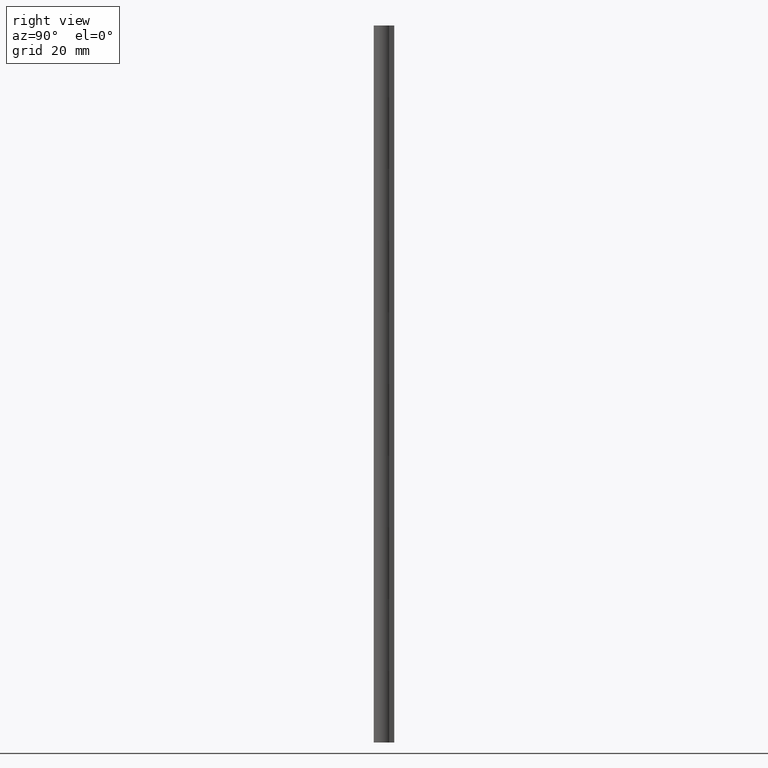
[diagram: clean part render]
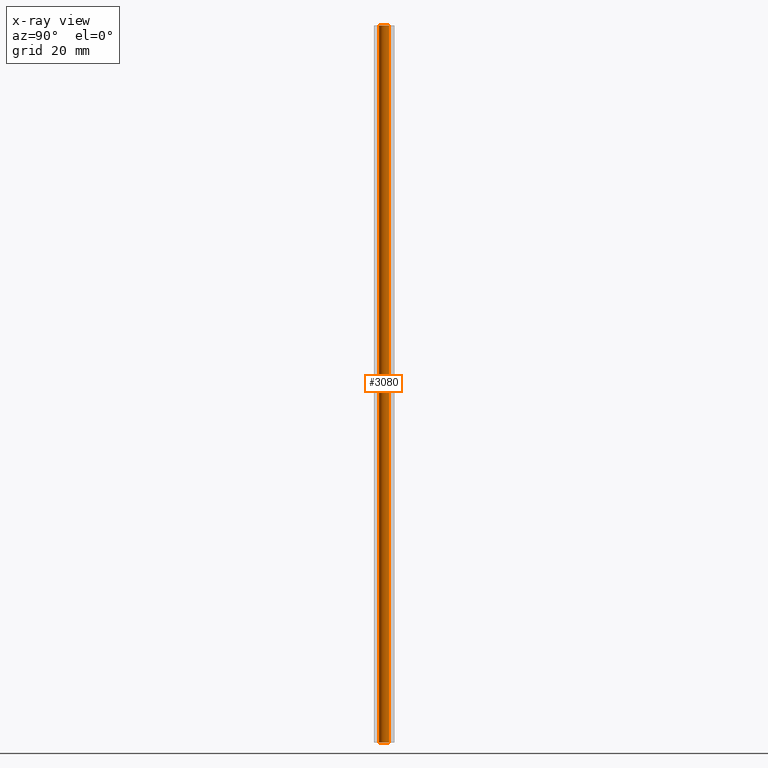
[diagram: x-ray — body ghosted, one internal face saturated and labeled with its STEP entity id]
A machine part, right view, then the same camera in x-ray: the body is ghosted and one INTERNAL B-rep face — a face not visible from any outside direction — is saturated and labeled: STEP entity #3080.
In plain terms, the highlighted face is a freeform B-spline surface patch.
Its self-contained STEP definition (entity closure, byte-faithful):
#2978=CARTESIAN_POINT('',(0.118034234656758,-0.993009526363666,143.500000000000030));
#2979=CARTESIAN_POINT('',(0.089614728637978,-0.996387615448606,143.500000000000030));
#2980=CARTESIAN_POINT('',(0.061048539534857,-0.998134798421867,143.500000000000000));
#2981=CARTESIAN_POINT('',(-0.937086258887010,-1.059183337956724,143.500000000000030));
#2982=CARTESIAN_POINT('',(-0.998134798421867,-0.061048539534857,143.500000000000000));
#2983=CARTESIAN_POINT('',(-1.059183337956724,0.937086258887010,143.500000000000030));
#2984=CARTESIAN_POINT('',(-0.061048539534857,0.998134798421867,143.500000000000000));
#2985=CARTESIAN_POINT('',(0.118034234656758,-0.993009526363666,-3.587500000000006));
#2986=CARTESIAN_POINT('',(0.089614728637978,-0.996387615448606,-3.587500000000005));
#2987=CARTESIAN_POINT('',(0.061048539534857,-0.998134798421867,-3.587500000000006));
#2988=CARTESIAN_POINT('',(-0.937086258887010,-1.059183337956724,-3.587500000000007));
#2989=CARTESIAN_POINT('',(-0.998134798421867,-0.061048539534857,-3.587500000000006));
#2990=CARTESIAN_POINT('',(-1.059183337956724,0.937086258887010,-3.587500000000007));
#2991=CARTESIAN_POINT('',(-0.061048539534857,0.998134798421867,-3.587500000000006));
#2999=(BOUNDED_SURFACE()B_SPLINE_SURFACE(2,1,((#2978,#2985),(#2979,#2986),(#2980,#2987),(#2981,#2988),(#2982,#2989),(#2983,#2990),(#2984,#2991)),.UNSPECIFIED.,.F.,.F.,.U.)B_SPLINE_SURFACE_WITH_KNOTS((3,2,2,3),(2,2),(3.078760800517997,3.141592653589793,4.712388980384690,6.283185307179586),(0.0,147.087500000000010),.UNSPECIFIED.)GEOMETRIC_REPRESENTATION_ITEM()RATIONAL_B_SPLINE_SURFACE(((0.977505800795127,0.977505800795127),(0.988284271247462,0.988284271247462),(1.0,1.0),(0.707106781186548,0.707106781186548),(1.0,1.0),(0.707106781186548,0.707106781186548),(1.0,1.0)))REPRESENTATION_ITEM('')SURFACE());
#3000=CARTESIAN_POINT('',(0.118034236900434,-0.993009526096972,7.496091E-015));
#3001=VERTEX_POINT('',#3000);
#3002=CARTESIAN_POINT('',(-1.0,0.0,0.0));
#3003=VERTEX_POINT('',#3002);
#3004=CARTESIAN_POINT('',(0.118034236900433,-0.993009526096972,7.496091E-015));
#3005=CARTESIAN_POINT('',(0.059224121919305,-1.0,0.0));
#3006=CARTESIAN_POINT('',(0.0,-1.0,0.0));
#3007=CARTESIAN_POINT('',(-1.0,-1.0,0.0));
#3008=CARTESIAN_POINT('',(-1.0,0.0,0.0));
#3016=(BOUNDED_CURVE()B_SPLINE_CURVE(2,(#3004,#3005,#3006,#3007,#3008),.UNSPECIFIED.,.F.,.U.)B_SPLINE_CURVE_WITH_KNOTS((3,2,3),(0.229562472751929,0.250000000000000,0.500000000000000),.UNSPECIFIED.)CURVE()GEOMETRIC_REPRESENTATION_ITEM()RATIONAL_B_SPLINE_CURVE((0.956026752690972,0.976055947438899,1.0,0.707106781186548,1.0))REPRESENTATION_ITEM(''));
#3017=EDGE_CURVE('',#3001,#3003,#3016,.T.);
#3018=ORIENTED_EDGE('',*,*,#3017,.F.);
#3019=CARTESIAN_POINT('',(0.118034236900436,-0.993009526096971,140.0));
#3020=VERTEX_POINT('',#3019);
#3021=CARTESIAN_POINT('',(0.118034236900436,-0.993009526096971,140.0));
#3022=CARTESIAN_POINT('',(0.118034236900434,-0.993009526096972,7.496091E-015));
#3023=QUASI_UNIFORM_CURVE('',1,(#3021,#3022),.UNSPECIFIED.,.F.,.U.);
#3024=EDGE_CURVE('',#3020,#3001,#3023,.T.);
#3025=ORIENTED_EDGE('',*,*,#3024,.F.);
#3026=CARTESIAN_POINT('',(-1.0,0.0,140.0));
#3027=VERTEX_POINT('',#3026);
#3028=CARTESIAN_POINT('',(0.118034236900436,-0.993009526096971,140.000000000000060));
#3029=CARTESIAN_POINT('',(0.059224121919308,-1.0,139.999999999999970));
#3030=CARTESIAN_POINT('',(0.0,-1.0,140.0));
#3031=CARTESIAN_POINT('',(-1.0,-1.0,140.0));
#3032=CARTESIAN_POINT('',(-1.0,0.0,140.0));
#3040=(BOUNDED_CURVE()B_SPLINE_CURVE(2,(#3028,#3029,#3030,#3031,#3032),.UNSPECIFIED.,.F.,.U.)B_SPLINE_CURVE_WITH_KNOTS((3,2,3),(0.229562472751928,0.250000000000000,0.500000000000000),.UNSPECIFIED.)CURVE()GEOMETRIC_REPRESENTATION_ITEM()RATIONAL_B_SPLINE_CURVE((0.956026752690970,0.976055947438898,1.0,0.707106781186548,1.0))REPRESENTATION_ITEM(''));
#3041=EDGE_CURVE('',#3020,#3027,#3040,.T.);
#3042=ORIENTED_EDGE('',*,*,#3041,.T.);
#3043=CARTESIAN_POINT('',(-0.061048541855223,0.998134798279947,140.0));
#3044=VERTEX_POINT('',#3043);
#3045=CARTESIAN_POINT('',(-1.0,0.0,140.0));
#3046=CARTESIAN_POINT('',(-1.0,0.940706062523801,140.000000000000030));
#3047=CARTESIAN_POINT('',(-0.061048541855223,0.998134798279947,140.0));
#3055=(BOUNDED_CURVE()B_SPLINE_CURVE(2,(#3045,#3046,#3047),.UNSPECIFIED.,.F.,.U.)B_SPLINE_CURVE_WITH_KNOTS((3,3),(0.500000000000000,0.739332961439729),.UNSPECIFIED.)CURVE()GEOMETRIC_REPRESENTATION_ITEM()RATIONAL_B_SPLINE_CURVE((1.0,0.719603994223048,0.976072039953850))REPRESENTATION_ITEM(''));
#3056=EDGE_CURVE('',#3027,#3044,#3055,.T.);
#3057=ORIENTED_EDGE('',*,*,#3056,.T.);
#3058=CARTESIAN_POINT('',(-0.061048541855220,0.998134798279947,7.327472E-015));
#3059=VERTEX_POINT('',#3058);
#3060=CARTESIAN_POINT('',(-0.061048541855223,0.998134798279947,140.0));
#3061=CARTESIAN_POINT('',(-0.061048541855220,0.998134798279947,7.327472E-015));
#3062=QUASI_UNIFORM_CURVE('',1,(#3060,#3061),.UNSPECIFIED.,.F.,.U.);
#3063=EDGE_CURVE('',#3044,#3059,#3062,.T.);
#3064=ORIENTED_EDGE('',*,*,#3063,.T.);
#3065=CARTESIAN_POINT('',(-1.0,0.0,0.0));
#3066=CARTESIAN_POINT('',(-1.0,0.940706062523801,0.0));
#3067=CARTESIAN_POINT('',(-0.061048541855220,0.998134798279947,7.327472E-015));
#3075=(BOUNDED_CURVE()B_SPLINE_CURVE(2,(#3065,#3066,#3067),.UNSPECIFIED.,.F.,.U.)B_SPLINE_CURVE_WITH_KNOTS((3,3),(0.500000000000000,0.739332961439729),.UNSPECIFIED.)CURVE()GEOMETRIC_REPRESENTATION_ITEM()RATIONAL_B_SPLINE_CURVE((1.0,0.719603994223048,0.976072039953850))REPRESENTATION_ITEM(''));
#3076=EDGE_CURVE('',#3003,#3059,#3075,.T.);
#3077=ORIENTED_EDGE('',*,*,#3076,.F.);
#3078=EDGE_LOOP('',(#3018,#3025,#3042,#3057,#3064,#3077));
#3079=FACE_OUTER_BOUND('',#3078,.T.);
#3080=ADVANCED_FACE('',(#3079),#2999,.T.);